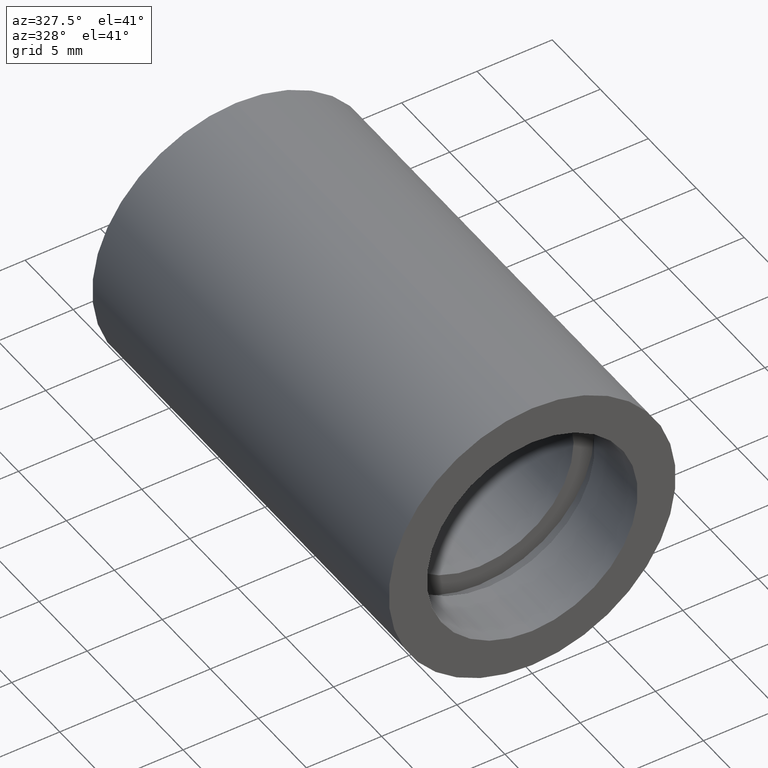
[diagram: clean part render]
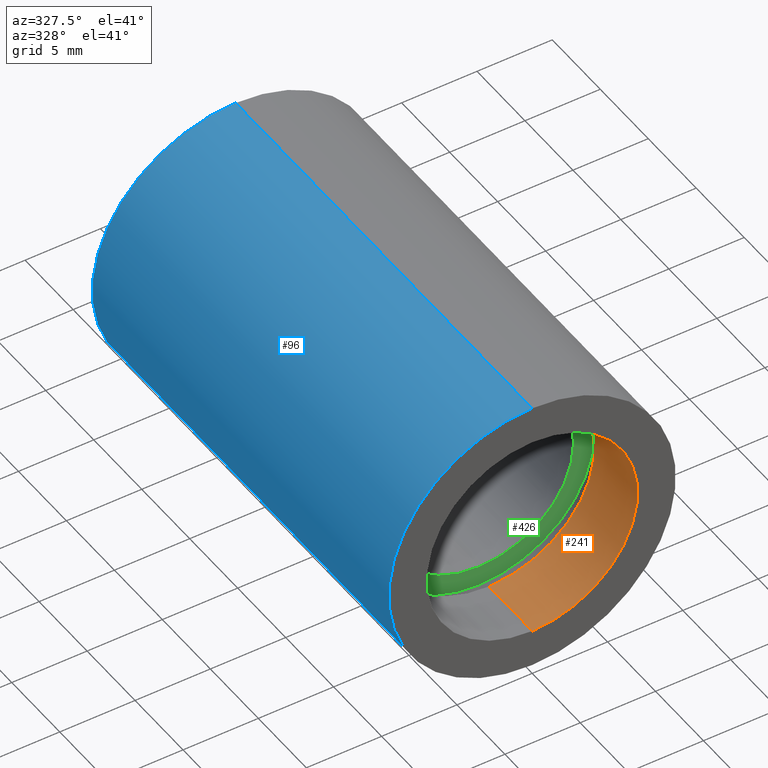
[diagram: same view with three faces highlighted in distinct colors, each labeled with its STEP entity id]
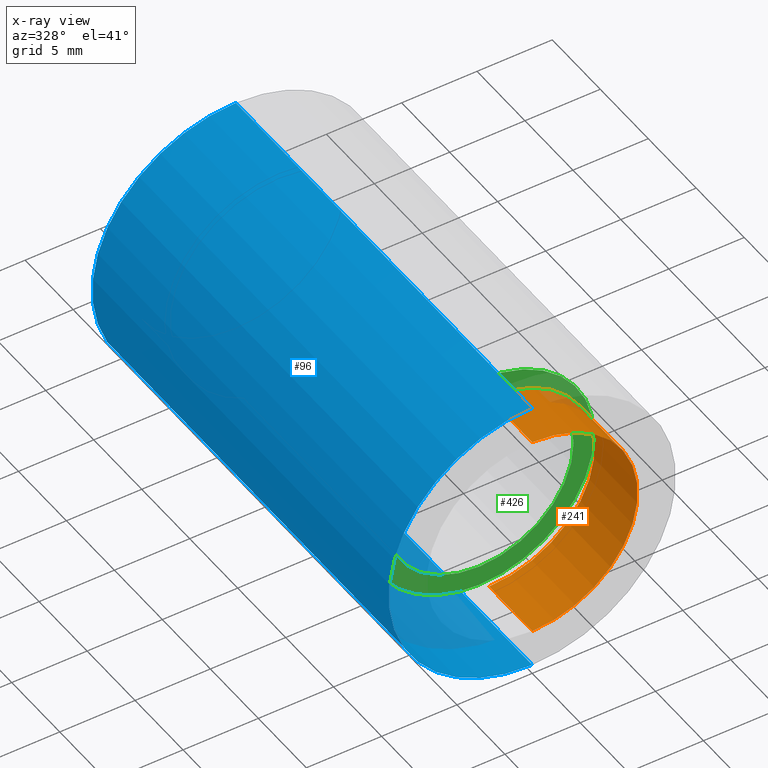
[diagram: x-ray of the same camera — body ghosted, the three highlighted faces saturated]
A machine part, auxiliary view with three faces highlighted in distinct colors.
The next image is the same camera in x-ray (body ghosted, the three faces saturated) — at least one of them is partly hidden behind the body in this view.
Their STEP definitions:

[orange] entity #241 — the highlighted cylindrical surface (partial cylindrical patch) has radius 7 mm, axis along (-0, 1, -0).
#25 = VERTEX_POINT ( 'NONE', #85 ) ;
#52 = CIRCLE ( 'NONE', #292, 7.000000000000020400 ) ;
#67 = CARTESIAN_POINT ( 'NONE',  ( 0.0000000000000000000, 4.499999999999976000, 0.0000000000000000000 ) ) ;
#83 = ORIENTED_EDGE ( 'NONE', *, *, #371, .T. ) ;
#85 = CARTESIAN_POINT ( 'NONE',  ( 0.0000000000000000000, 4.499999999999976000, 7.000000000000020400 ) ) ;
#92 = FACE_OUTER_BOUND ( 'NONE', #395, .T. ) ;
#136 = VECTOR ( 'NONE', #140, 1000.000000000000000 ) ;
#140 = DIRECTION ( 'NONE',  ( -0.0000000000000000000, 1.000000000000000000, -0.0000000000000000000 ) ) ;
#150 = DIRECTION ( 'NONE',  ( 0.0000000000000000000, 0.0000000000000000000, 1.000000000000000000 ) ) ;
#172 = VERTEX_POINT ( 'NONE', #507 ) ;
#189 = EDGE_CURVE ( 'NONE', #275, #236, #348, .T. ) ;
#200 = DIRECTION ( 'NONE',  ( -0.0000000000000000000, 1.000000000000000000, -0.0000000000000000000 ) ) ;
#228 = ORIENTED_EDGE ( 'NONE', *, *, #346, .T. ) ;
#231 = AXIS2_PLACEMENT_3D ( 'NONE', #335, #278, #150 ) ;
#236 = VERTEX_POINT ( 'NONE', #363 ) ;
#240 = DIRECTION ( 'NONE',  ( -0.0000000000000000000, 1.000000000000000000, -0.0000000000000000000 ) ) ;
#241 = ADVANCED_FACE ( 'NONE', ( #92 ), #264, .F. ) ;
#262 = AXIS2_PLACEMENT_3D ( 'NONE', #575, #240, #327 ) ;
#264 = CYLINDRICAL_SURFACE ( 'NONE', #262, 7.000000000000020400 ) ;
#274 = CARTESIAN_POINT ( 'NONE',  ( 8.572527594031496900E-016, -2.775557561562891400E-014, -7.000000000000020400 ) ) ;
#275 = VERTEX_POINT ( 'NONE', #274 ) ;
#278 = DIRECTION ( 'NONE',  ( -0.0000000000000000000, 1.000000000000000000, -0.0000000000000000000 ) ) ;
#284 = ORIENTED_EDGE ( 'NONE', *, *, #189, .F. ) ;
#287 = ORIENTED_EDGE ( 'NONE', *, *, #309, .F. ) ;
#292 = AXIS2_PLACEMENT_3D ( 'NONE', #67, #200, #294 ) ;
#294 = DIRECTION ( 'NONE',  ( 0.0000000000000000000, 0.0000000000000000000, 1.000000000000000000 ) ) ;
#309 = EDGE_CURVE ( 'NONE', #172, #275, #608, .T. ) ;
#327 = DIRECTION ( 'NONE',  ( 0.0000000000000000000, 0.0000000000000000000, 1.000000000000000000 ) ) ;
#335 = CARTESIAN_POINT ( 'NONE',  ( 0.0000000000000000000, -2.775557561562891400E-014, 0.0000000000000000000 ) ) ;
#341 = DIRECTION ( 'NONE',  ( -0.0000000000000000000, 1.000000000000000000, -0.0000000000000000000 ) ) ;
#346 = EDGE_CURVE ( 'NONE', #25, #236, #52, .T. ) ;
#348 = LINE ( 'NONE', #465, #136 ) ;
#363 = CARTESIAN_POINT ( 'NONE',  ( 8.572527594031496900E-016, 4.499999999999976000, -7.000000000000020400 ) ) ;
#371 = EDGE_CURVE ( 'NONE', #172, #25, #584, .T. ) ;
#395 = EDGE_LOOP ( 'NONE', ( #284, #287, #83, #228 ) ) ;
#465 = CARTESIAN_POINT ( 'NONE',  ( 8.572527594031496900E-016, 161.3761669434274500, -7.000000000000020400 ) ) ;
#491 = CARTESIAN_POINT ( 'NONE',  ( 0.0000000000000000000, 161.3761669434274500, 7.000000000000020400 ) ) ;
#501 = VECTOR ( 'NONE', #341, 1000.000000000000000 ) ;
#507 = CARTESIAN_POINT ( 'NONE',  ( 0.0000000000000000000, -2.775557561562891400E-014, 7.000000000000020400 ) ) ;
#575 = CARTESIAN_POINT ( 'NONE',  ( 0.0000000000000000000, 161.3761669434274500, 0.0000000000000000000 ) ) ;
#584 = LINE ( 'NONE', #491, #501 ) ;
#608 = CIRCLE ( 'NONE', #231, 7.000000000000020400 ) ;

[blue] entity #96 — the highlighted cylindrical surface (partial cylindrical patch) has radius 9.525 mm, axis along (-0, 1, -0).
#8 = EDGE_LOOP ( 'NONE', ( #41, #549, #243, #56 ) ) ;
#13 = LINE ( 'NONE', #497, #489 ) ;
#14 = CARTESIAN_POINT ( 'NONE',  ( 0.0000000000000000000, -2.775557561562891400E-014, 9.525000000000019900 ) ) ;
#21 = DIRECTION ( 'NONE',  ( -0.0000000000000000000, 1.000000000000000000, -0.0000000000000000000 ) ) ;
#38 = DIRECTION ( 'NONE',  ( 0.0000000000000000000, 0.0000000000000000000, 1.000000000000000000 ) ) ;
#41 = ORIENTED_EDGE ( 'NONE', *, *, #494, .F. ) ;
#56 = ORIENTED_EDGE ( 'NONE', *, *, #473, .F. ) ;
#71 = CARTESIAN_POINT ( 'NONE',  ( 0.0000000000000000000, -2.775557561562891400E-014, 0.0000000000000000000 ) ) ;
#79 = DIRECTION ( 'NONE',  ( 0.0000000000000000000, 0.0000000000000000000, 1.000000000000000000 ) ) ;
#96 = ADVANCED_FACE ( 'NONE', ( #349 ), #191, .T. ) ;
#100 = AXIS2_PLACEMENT_3D ( 'NONE', #71, #21, #300 ) ;
#101 = CIRCLE ( 'NONE', #279, 9.525000000000019900 ) ;
#106 = LINE ( 'NONE', #411, #522 ) ;
#124 = DIRECTION ( 'NONE',  ( -0.0000000000000000000, 1.000000000000000000, -0.0000000000000000000 ) ) ;
#127 = CARTESIAN_POINT ( 'NONE',  ( 0.0000000000000000000, 30.89999999999998400, 0.0000000000000000000 ) ) ;
#130 = DIRECTION ( 'NONE',  ( -0.0000000000000000000, 1.000000000000000000, -0.0000000000000000000 ) ) ;
#191 = CYLINDRICAL_SURFACE ( 'NONE', #541, 9.525000000000019900 ) ;
#218 = EDGE_CURVE ( 'NONE', #588, #434, #106, .T. ) ;
#232 = DIRECTION ( 'NONE',  ( -0.0000000000000000000, 1.000000000000000000, -0.0000000000000000000 ) ) ;
#234 = CARTESIAN_POINT ( 'NONE',  ( 1.166476076187856400E-015, -2.775557561562891400E-014, -9.525000000000019900 ) ) ;
#243 = ORIENTED_EDGE ( 'NONE', *, *, #218, .T. ) ;
#279 = AXIS2_PLACEMENT_3D ( 'NONE', #127, #124, #79 ) ;
#300 = DIRECTION ( 'NONE',  ( 0.0000000000000000000, 0.0000000000000000000, 1.000000000000000000 ) ) ;
#307 = VERTEX_POINT ( 'NONE', #329 ) ;
#315 = DIRECTION ( 'NONE',  ( -0.0000000000000000000, 1.000000000000000000, -0.0000000000000000000 ) ) ;
#321 = VERTEX_POINT ( 'NONE', #234 ) ;
#329 = CARTESIAN_POINT ( 'NONE',  ( 1.166476076187856400E-015, 30.89999999999998400, -9.525000000000019900 ) ) ;
#349 = FACE_OUTER_BOUND ( 'NONE', #8, .T. ) ;
#411 = CARTESIAN_POINT ( 'NONE',  ( 0.0000000000000000000, 161.3761669434274500, 9.525000000000019900 ) ) ;
#417 = CIRCLE ( 'NONE', #100, 9.525000000000019900 ) ;
#434 = VERTEX_POINT ( 'NONE', #592 ) ;
#437 = EDGE_CURVE ( 'NONE', #321, #588, #417, .T. ) ;
#473 = EDGE_CURVE ( 'NONE', #307, #434, #101, .T. ) ;
#489 = VECTOR ( 'NONE', #130, 1000.000000000000000 ) ;
#494 = EDGE_CURVE ( 'NONE', #321, #307, #13, .T. ) ;
#497 = CARTESIAN_POINT ( 'NONE',  ( 1.166476076187856400E-015, 161.3761669434274500, -9.525000000000019900 ) ) ;
#522 = VECTOR ( 'NONE', #232, 1000.000000000000000 ) ;
#541 = AXIS2_PLACEMENT_3D ( 'NONE', #610, #315, #38 ) ;
#549 = ORIENTED_EDGE ( 'NONE', *, *, #437, .T. ) ;
#588 = VERTEX_POINT ( 'NONE', #14 ) ;
#592 = CARTESIAN_POINT ( 'NONE',  ( 0.0000000000000000000, 30.89999999999998400, 9.525000000000019900 ) ) ;
#610 = CARTESIAN_POINT ( 'NONE',  ( 0.0000000000000000000, 161.3761669434274500, 0.0000000000000000000 ) ) ;

[green] entity #426 — the highlighted planar face has unit normal (-0, 1, 0).
#19 = CARTESIAN_POINT ( 'NONE',  ( 6.250000000000019500, 5.499999999999983100, 0.0000000000000000000 ) ) ;
#27 = FACE_BOUND ( 'NONE', #353, .T. ) ;
#32 = VERTEX_POINT ( 'NONE', #171 ) ;
#53 = DIRECTION ( 'NONE',  ( 0.0000000000000000000, 0.0000000000000000000, 1.000000000000000000 ) ) ;
#55 = CARTESIAN_POINT ( 'NONE',  ( 0.0000000000000000000, 5.499999999999976900, 6.250000000000019500 ) ) ;
#63 = EDGE_CURVE ( 'NONE', #293, #122, #88, .T. ) ;
#80 = AXIS2_PLACEMENT_3D ( 'NONE', #291, #439, #285 ) ;
#88 = CIRCLE ( 'NONE', #253, 6.250000000000019500 ) ;
#90 = VERTEX_POINT ( 'NONE', #606 ) ;
#91 = CARTESIAN_POINT ( 'NONE',  ( 7.654042494670981300E-016, 5.499999999999976900, -6.250000000000019500 ) ) ;
#99 = DIRECTION ( 'NONE',  ( -0.0000000000000000000, 1.000000000000000000, -0.0000000000000000000 ) ) ;
#110 = FACE_OUTER_BOUND ( 'NONE', #176, .T. ) ;
#122 = VERTEX_POINT ( 'NONE', #91 ) ;
#143 = AXIS2_PLACEMENT_3D ( 'NONE', #148, #474, #570 ) ;
#148 = CARTESIAN_POINT ( 'NONE',  ( 0.0000000000000000000, 5.499999999999976900, 0.0000000000000000000 ) ) ;
#165 = DIRECTION ( 'NONE',  ( -0.0000000000000000000, 1.000000000000000000, 0.0000000000000000000 ) ) ;
#171 = CARTESIAN_POINT ( 'NONE',  ( 0.0000000000000000000, 5.499999999999976900, 7.600000000000019200 ) ) ;
#176 = EDGE_LOOP ( 'NONE', ( #600, #516 ) ) ;
#247 = EDGE_CURVE ( 'NONE', #122, #293, #409, .T. ) ;
#250 = ORIENTED_EDGE ( 'NONE', *, *, #247, .T. ) ;
#253 = AXIS2_PLACEMENT_3D ( 'NONE', #406, #556, #270 ) ;
#270 = DIRECTION ( 'NONE',  ( 0.0000000000000000000, 0.0000000000000000000, 1.000000000000000000 ) ) ;
#276 = EDGE_CURVE ( 'NONE', #90, #32, #559, .T. ) ;
#285 = DIRECTION ( 'NONE',  ( 0.0000000000000000000, 0.0000000000000000000, 1.000000000000000000 ) ) ;
#291 = CARTESIAN_POINT ( 'NONE',  ( 0.0000000000000000000, 5.499999999999976900, 0.0000000000000000000 ) ) ;
#293 = VERTEX_POINT ( 'NONE', #55 ) ;
#350 = EDGE_CURVE ( 'NONE', #32, #90, #552, .T. ) ;
#353 = EDGE_LOOP ( 'NONE', ( #546, #250 ) ) ;
#365 = AXIS2_PLACEMENT_3D ( 'NONE', #624, #99, #53 ) ;
#406 = CARTESIAN_POINT ( 'NONE',  ( 0.0000000000000000000, 5.499999999999976900, 0.0000000000000000000 ) ) ;
#409 = CIRCLE ( 'NONE', #365, 6.250000000000019500 ) ;
#426 = ADVANCED_FACE ( 'NONE', ( #110, #27 ), #538, .F. ) ;
#439 = DIRECTION ( 'NONE',  ( -0.0000000000000000000, 1.000000000000000000, -0.0000000000000000000 ) ) ;
#440 = DIRECTION ( 'NONE',  ( 0.0000000000000000000, 0.0000000000000000000, 1.000000000000000000 ) ) ;
#474 = DIRECTION ( 'NONE',  ( -0.0000000000000000000, 1.000000000000000000, -0.0000000000000000000 ) ) ;
#513 = AXIS2_PLACEMENT_3D ( 'NONE', #19, #165, #440 ) ;
#516 = ORIENTED_EDGE ( 'NONE', *, *, #276, .F. ) ;
#538 = PLANE ( 'NONE',  #513 ) ;
#546 = ORIENTED_EDGE ( 'NONE', *, *, #63, .T. ) ;
#552 = CIRCLE ( 'NONE', #80, 7.600000000000019200 ) ;
#556 = DIRECTION ( 'NONE',  ( -0.0000000000000000000, 1.000000000000000000, -0.0000000000000000000 ) ) ;
#559 = CIRCLE ( 'NONE', #143, 7.600000000000019200 ) ;
#570 = DIRECTION ( 'NONE',  ( 0.0000000000000000000, 0.0000000000000000000, 1.000000000000000000 ) ) ;
#600 = ORIENTED_EDGE ( 'NONE', *, *, #350, .F. ) ;
#606 = CARTESIAN_POINT ( 'NONE',  ( 9.307315673519907200E-016, 5.499999999999976900, -7.600000000000019200 ) ) ;
#624 = CARTESIAN_POINT ( 'NONE',  ( 0.0000000000000000000, 5.499999999999976900, 0.0000000000000000000 ) ) ;